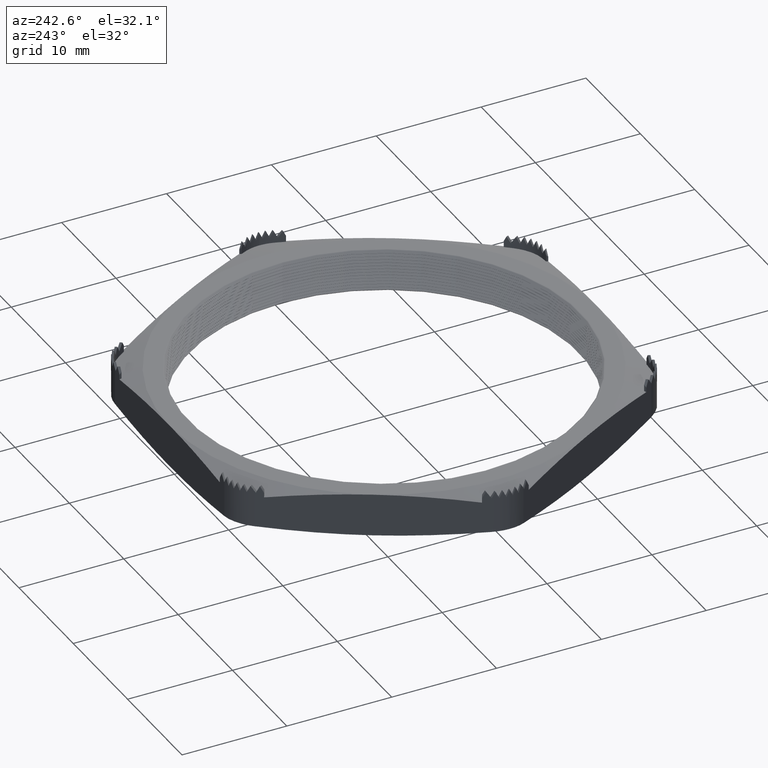
[diagram: clean part render]
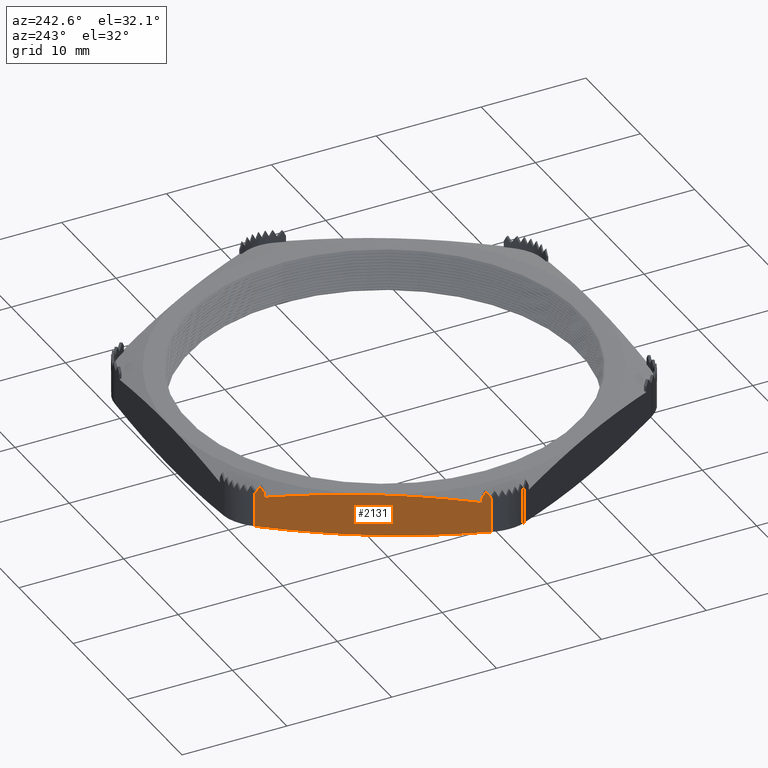
[diagram: same view with one face highlighted and labeled with its STEP entity id]
A machine part, auxiliary view. The second image highlights one B-rep face of the part: STEP entity #2131.
In plain terms, the highlighted planar face has unit normal (0.866, -0.5, 0).
Its self-contained STEP definition (entity closure, byte-faithful):
#1958 = VERTEX_POINT ( 'NONE', #5729 ) ;
#2017 = VERTEX_POINT ( 'NONE', #5893 ) ;
#2019 = EDGE_CURVE ( 'NONE', #2017, #1958, #5882, .T. ) ;
#2112 = EDGE_CURVE ( 'NONE', #2134, #2113, #6078, .T. ) ;
#2113 = VERTEX_POINT ( 'NONE', #6074 ) ;
#2114 = ORIENTED_EDGE ( 'NONE', *, *, #2115, .T. ) ;
#2115 = EDGE_CURVE ( 'NONE', #2113, #2116, #6072, .T. ) ;
#2116 = VERTEX_POINT ( 'NONE', #6068 ) ;
#2117 = ORIENTED_EDGE ( 'NONE', *, *, #2118, .F. ) ;
#2118 = EDGE_CURVE ( 'NONE', #2119, #2116, #6067, .T. ) ;
#2119 = VERTEX_POINT ( 'NONE', #6063 ) ;
#2131 = ADVANCED_FACE ( 'NONE', ( #6121 ), #6120, .F. ) ;
#2132 = EDGE_LOOP ( 'NONE', ( #2133, #2114, #2117, #2276, #2277, #2231, #2193, #2316, #2209, #2275, #2224, #2206, #2207 ) ) ;
#2133 = ORIENTED_EDGE ( 'NONE', *, *, #2112, .T. ) ;
#2134 = VERTEX_POINT ( 'NONE', #6112 ) ;
#2193 = ORIENTED_EDGE ( 'NONE', *, *, #2194, .T. ) ;
#2194 = EDGE_CURVE ( 'NONE', #2232, #2195, #6222, .T. ) ;
#2195 = VERTEX_POINT ( 'NONE', #6218 ) ;
#2196 = EDGE_CURVE ( 'NONE', #2195, #2197, #6279, .T. ) ;
#2197 = VERTEX_POINT ( 'NONE', #6275 ) ;
#2206 = ORIENTED_EDGE ( 'NONE', *, *, #2019, .F. ) ;
#2207 = ORIENTED_EDGE ( 'NONE', *, *, #2229, .T. ) ;
#2209 = ORIENTED_EDGE ( 'NONE', *, *, #2210, .T. ) ;
#2210 = EDGE_CURVE ( 'NONE', #2197, #2211, #6257, .T. ) ;
#2211 = VERTEX_POINT ( 'NONE', #6253 ) ;
#2222 = EDGE_CURVE ( 'NONE', #2211, #2223, #6298, .T. ) ;
#2223 = VERTEX_POINT ( 'NONE', #6294 ) ;
#2224 = ORIENTED_EDGE ( 'NONE', *, *, #2225, .F. ) ;
#2225 = EDGE_CURVE ( 'NONE', #1958, #2223, #6292, .T. ) ;
#2229 = EDGE_CURVE ( 'NONE', #2017, #2134, #6338, .T. ) ;
#2231 = ORIENTED_EDGE ( 'NONE', *, *, #2317, .T. ) ;
#2232 = VERTEX_POINT ( 'NONE', #6328 ) ;
#2265 = EDGE_CURVE ( 'NONE', #2278, #2315, #6378, .T. ) ;
#2275 = ORIENTED_EDGE ( 'NONE', *, *, #2222, .T. ) ;
#2276 = ORIENTED_EDGE ( 'NONE', *, *, #2314, .F. ) ;
#2277 = ORIENTED_EDGE ( 'NONE', *, *, #2265, .F. ) ;
#2278 = VERTEX_POINT ( 'NONE', #6412 ) ;
#2314 = EDGE_CURVE ( 'NONE', #2315, #2119, #6463, .T. ) ;
#2315 = VERTEX_POINT ( 'NONE', #6462 ) ;
#2316 = ORIENTED_EDGE ( 'NONE', *, *, #2196, .T. ) ;
#2317 = EDGE_CURVE ( 'NONE', #2278, #2232, #6455, .T. ) ;
#5729 = CARTESIAN_POINT ( 'NONE',  ( -0.6971504500464731400, 0.4025000000000000200, 0.0000000000000000000 ) ) ;
#5874 = CARTESIAN_POINT ( 'NONE',  ( -0.6971504500464731400, 0.4025000000000000200, 0.0000000000000000000 ) ) ;
#5875 = CARTESIAN_POINT ( 'NONE',  ( -0.7301075279127143800, 0.3454166666666668200, -4.388564403884485200E-017 ) ) ;
#5876 = CARTESIAN_POINT ( 'NONE',  ( -0.7630646057789554100, 0.2883333333333333900, 0.002199165082848740800 ) ) ;
#5877 = CARTESIAN_POINT ( 'NONE',  ( -0.8289787615114377900, 0.1741666666666668000, 0.01062557450867281300 ) ) ;
#5878 = CARTESIAN_POINT ( 'NONE',  ( -0.8619358393776787000, 0.1170833333333334100, 0.01683726415721120000 ) ) ;
#5879 = CARTESIAN_POINT ( 'NONE',  ( -0.8948929172439200600, 0.06000000000000005300, 0.02462508695735187600 ) ) ;
#5882 = B_SPLINE_CURVE_WITH_KNOTS ( 'NONE', 3,
 ( #5879, #5878, #5877, #5876, #5875, #5874 ),
 .UNSPECIFIED., .F., .F.,
 ( 4, 2, 4 ),
 ( 2.309401076818776600E-007, 0.005022889606922832300, 0.01004554827373798200 ),
 .UNSPECIFIED. ) ;
#5893 = CARTESIAN_POINT ( 'NONE',  ( -0.8948929172439200600, 0.06000000000000005300, 0.02462508695735187600 ) ) ;
#6063 = CARTESIAN_POINT ( 'NONE',  ( -0.8788929172439213800, 0.08771281292109976700, 0.1390305889569836700 ) ) ;
#6064 = DIRECTION ( 'NONE',  ( 0.0000000000000000000, 0.0000000000000000000, 1.000000000000000000 ) ) ;
#6065 = VECTOR ( 'NONE', #6064, 39.37007874015748100 ) ;
#6066 = CARTESIAN_POINT ( 'NONE',  ( -0.8788929172439201600, 0.08771281292110011400, -19685.03937007874300 ) ) ;
#6067 = LINE ( 'NONE', #6066, #6065 ) ;
#6068 = CARTESIAN_POINT ( 'NONE',  ( -0.8788929172447780300, 0.08771281292134484900, 0.1569999999989681600 ) ) ;
#6069 = DIRECTION ( 'NONE',  ( 0.2409114054616048900, 0.4172707943823258900, -0.8762686682028845200 ) ) ;
#6070 = VECTOR ( 'NONE', #6069, 39.37007874015748100 ) ;
#6071 = CARTESIAN_POINT ( 'NONE',  ( -0.7833855532220175300, 0.2531364199040132000, -0.1903895746641186500 ) ) ;
#6072 = LINE ( 'NONE', #6071, #6070 ) ;
#6074 = CARTESIAN_POINT ( 'NONE',  ( -0.8858211204741970300, 0.07571281292109950700, 0.1822000000000000300 ) ) ;
#6075 = DIRECTION ( 'NONE',  ( 0.2921480525624231600, 0.5060152703704197100, 0.8115405483005360100 ) ) ;
#6076 = VECTOR ( 'NONE', #6075, 39.37007874015748900 ) ;
#6077 = CARTESIAN_POINT ( 'NONE',  ( -0.7473358139714407800, 0.3155763998856218600, 0.5668900247496978500 ) ) ;
#6078 = LINE ( 'NONE', #6077, #6076 ) ;
#6109 = DIRECTION ( 'NONE',  ( 0.8660254037844386000, -0.5000000000000001100, 0.0000000000000000000 ) ) ;
#6110 = CARTESIAN_POINT ( 'NONE',  ( -0.4647669666976486100, 0.8050000000000001600, 0.1600000000000000000 ) ) ;
#6111 = AXIS2_PLACEMENT_3D ( 'NONE', #6110, #6109, #6160 ) ;
#6112 = CARTESIAN_POINT ( 'NONE',  ( -0.8948929172439213900, 0.05999999999999786800, 0.1570000000000000000 ) ) ;
#6120 = PLANE ( 'NONE',  #6111 ) ;
#6121 = FACE_OUTER_BOUND ( 'NONE', #2132, .T. ) ;
#6160 = DIRECTION ( 'NONE',  ( 0.5000000000000001100, 0.8660254037844386000, 0.0000000000000000000 ) ) ;
#6218 = CARTESIAN_POINT ( 'NONE',  ( -0.5084797796187506800, 0.7292871870788983900, 0.1822000000000000300 ) ) ;
#6219 = DIRECTION ( 'NONE',  ( 0.2409114054616045300, 0.4172707943823250600, 0.8762686682028848500 ) ) ;
#6220 = VECTOR ( 'NONE', #6219, 39.37007874015748900 ) ;
#6221 = CARTESIAN_POINT ( 'NONE',  ( -0.5030181984791367600, 0.7387469231023693400, 0.2020654456492893500 ) ) ;
#6222 = LINE ( 'NONE', #6221, #6220 ) ;
#6253 = CARTESIAN_POINT ( 'NONE',  ( -0.4994079828490261000, 0.7450000000000002200, 0.1629545598920814600 ) ) ;
#6254 = DIRECTION ( 'NONE',  ( 0.2921480525624228200, 0.5060152703704191600, 0.8115405483005364600 ) ) ;
#6255 = VECTOR ( 'NONE', #6254, 39.37007874015748900 ) ;
#6256 = CARTESIAN_POINT ( 'NONE',  ( -0.4882819693620985600, 0.7642708206450552500, 0.1938608452716530700 ) ) ;
#6257 = LINE ( 'NONE', #6256, #6255 ) ;
#6275 = CARTESIAN_POINT ( 'NONE',  ( -0.5015515763884751400, 0.7412871870788982900, 0.1570000000000000000 ) ) ;
#6276 = DIRECTION ( 'NONE',  ( 0.2409114054616043300, 0.4172707943823248900, -0.8762686682028850700 ) ) ;
#6277 = VECTOR ( 'NONE', #6276, 39.37007874015748900 ) ;
#6278 = CARTESIAN_POINT ( 'NONE',  ( -0.4936452201101453900, 0.7549813978557065000, 0.1282421573687025400 ) ) ;
#6279 = LINE ( 'NONE', #6278, #6277 ) ;
#6286 = CARTESIAN_POINT ( 'NONE',  ( -0.4994079828490261000, 0.7450000000000002200, 0.02462508695735187200 ) ) ;
#6287 = CARTESIAN_POINT ( 'NONE',  ( -0.5323650607152675700, 0.6879166666666670600, 0.01683726415721119700 ) ) ;
#6288 = CARTESIAN_POINT ( 'NONE',  ( -0.5653221385815082600, 0.6308333333333333600, 0.01062557450867282300 ) ) ;
#6289 = CARTESIAN_POINT ( 'NONE',  ( -0.6312362943139907500, 0.5166666666666668300, 0.002199165082848749900 ) ) ;
#6290 = CARTESIAN_POINT ( 'NONE',  ( -0.6641933721802322200, 0.4595833333333334500, -4.802076551362957200E-017 ) ) ;
#6291 = CARTESIAN_POINT ( 'NONE',  ( -0.6971504500464731400, 0.4025000000000000200, 0.0000000000000000000 ) ) ;
#6292 = B_SPLINE_CURVE_WITH_KNOTS ( 'NONE', 3,
 ( #6291, #6290, #6289, #6288, #6287, #6286 ),
 .UNSPECIFIED., .F., .F.,
 ( 4, 2, 4 ),
 ( 0.01004554827373798200, 0.01506820694055313300, 0.02009086560736828700 ),
 .UNSPECIFIED. ) ;
#6294 = CARTESIAN_POINT ( 'NONE',  ( -0.4994079828490261000, 0.7450000000000002200, 0.02462508695735187200 ) ) ;
#6295 = DIRECTION ( 'NONE',  ( 0.0000000000000000000, 0.0000000000000000000, -1.000000000000000000 ) ) ;
#6296 = VECTOR ( 'NONE', #6295, 39.37007874015748100 ) ;
#6297 = CARTESIAN_POINT ( 'NONE',  ( -0.4994079828490261000, 0.7450000000000002200, 0.1600000000000000000 ) ) ;
#6298 = LINE ( 'NONE', #6297, #6296 ) ;
#6328 = CARTESIAN_POINT ( 'NONE',  ( -0.5154079828500959200, 0.7172871870797913300, 0.1570000000000871300 ) ) ;
#6335 = DIRECTION ( 'NONE',  ( 0.0000000000000000000, 0.0000000000000000000, 1.000000000000000000 ) ) ;
#6336 = VECTOR ( 'NONE', #6335, 39.37007874015748100 ) ;
#6337 = CARTESIAN_POINT ( 'NONE',  ( -0.8948929172439200600, 0.06000000000000004600, 0.1600000000000000000 ) ) ;
#6338 = LINE ( 'NONE', #6337, #6336 ) ;
#6370 = CARTESIAN_POINT ( 'NONE',  ( -0.6971504500464731400, 0.4025000000000001900, 0.1600000000000000000 ) ) ;
#6371 = CARTESIAN_POINT ( 'NONE',  ( -0.6668600388468986000, 0.4549645311798165000, 0.1600000000000000600 ) ) ;
#6372 = CARTESIAN_POINT ( 'NONE',  ( -0.6365696276473239400, 0.5074290623596328100, 0.1581459543130509200 ) ) ;
#6373 = CARTESIAN_POINT ( 'NONE',  ( -0.5759888052481753100, 0.6123581247192655400, 0.1509963363517692300 ) ) ;
#6374 = CARTESIAN_POINT ( 'NONE',  ( -0.5456983940486004300, 0.6648226558990816300, 0.1457107357556508300 ) ) ;
#6375 = CARTESIAN_POINT ( 'NONE',  ( -0.5154079828490261100, 0.7172871870788981600, 0.1390305889569839700 ) ) ;
#6378 = B_SPLINE_CURVE_WITH_KNOTS ( 'NONE', 3,
 ( #6375, #6374, #6373, #6372, #6371, #6370 ),
 .UNSPECIFIED., .F., .F.,
 ( 4, 2, 4 ),
 ( 0.0008130309401076748300, 0.005429289606922825700, 0.01004554827373797600 ),
 .UNSPECIFIED. ) ;
#6412 = CARTESIAN_POINT ( 'NONE',  ( -0.5154079828490261100, 0.7172871870788981600, 0.1390305889569839700 ) ) ;
#6452 = DIRECTION ( 'NONE',  ( 0.0000000000000000000, 0.0000000000000000000, 1.000000000000000000 ) ) ;
#6453 = VECTOR ( 'NONE', #6452, 39.37007874015748100 ) ;
#6454 = CARTESIAN_POINT ( 'NONE',  ( -0.5154079828490257800, 0.7172871870788980500, -19685.03937007874300 ) ) ;
#6455 = LINE ( 'NONE', #6454, #6453 ) ;
#6456 = CARTESIAN_POINT ( 'NONE',  ( -0.8788929172439213800, 0.08771281292109976700, 0.1390305889569836700 ) ) ;
#6457 = CARTESIAN_POINT ( 'NONE',  ( -0.8486025060443466200, 0.1401773441009164200, 0.1457107357556506100 ) ) ;
#6458 = CARTESIAN_POINT ( 'NONE',  ( -0.8183120948447717400, 0.1926418752807331800, 0.1509963363517690700 ) ) ;
#6459 = CARTESIAN_POINT ( 'NONE',  ( -0.7577312724456227700, 0.2975709376403666800, 0.1581459543130508700 ) ) ;
#6460 = CARTESIAN_POINT ( 'NONE',  ( -0.7274408612460479000, 0.3500354688201832700, 0.1600000000000000300 ) ) ;
#6461 = CARTESIAN_POINT ( 'NONE',  ( -0.6971504500464731400, 0.4025000000000001900, 0.1600000000000000000 ) ) ;
#6462 = CARTESIAN_POINT ( 'NONE',  ( -0.6971504500464731400, 0.4025000000000001900, 0.1600000000000000000 ) ) ;
#6463 = B_SPLINE_CURVE_WITH_KNOTS ( 'NONE', 3,
 ( #6461, #6460, #6459, #6458, #6457, #6456 ),
 .UNSPECIFIED., .F., .F.,
 ( 4, 2, 4 ),
 ( 0.01004554827373797600, 0.01466180694055316300, 0.01927806560736834700 ),
 .UNSPECIFIED. ) ;